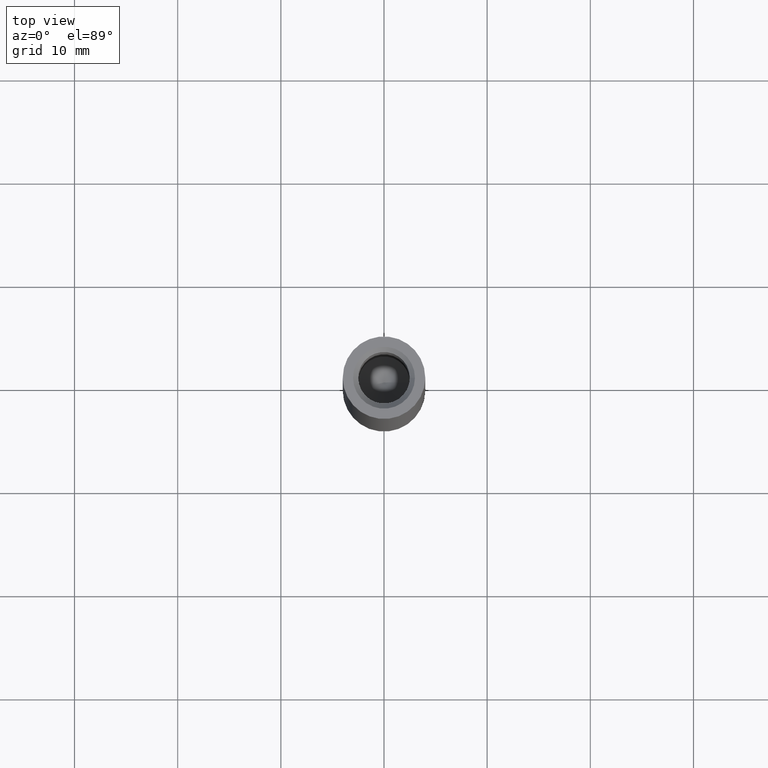
[diagram: clean part render]
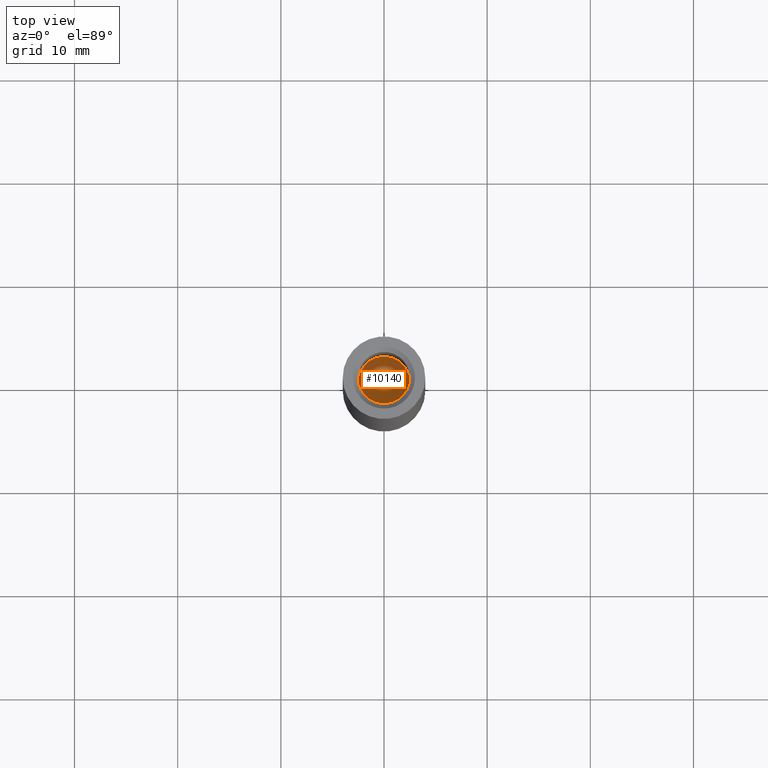
[diagram: same view with one face highlighted and labeled with its STEP entity id]
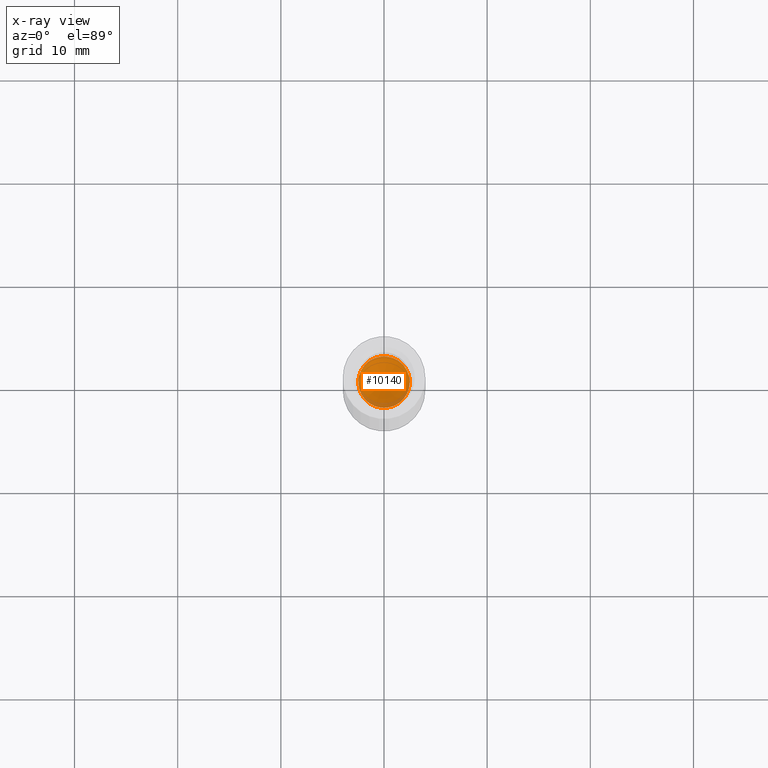
[diagram: x-ray of the same camera — body ghosted, the highlighted face saturated]
A machine part, top view. The second image highlights one B-rep face of the part: STEP entity #10140.
The next image is the same camera in x-ray: the body ghosted, the highlighted face saturated — about 11% of this face is hidden behind the body in this view.
In plain terms, the highlighted conical surface has half-angle 59 deg.
Its self-contained STEP definition (entity closure, byte-faithful):
#554 = DIRECTION ( 'NONE',  ( 1.000000000000000000, 0.000000000000000000, 0.000000000000000000 ) ) ;
#1102 = EDGE_LOOP ( 'NONE', ( #6890 ) ) ;
#2455 = CARTESIAN_POINT ( 'NONE',  ( 0.000000000000000000, 0.000000000000000000, 10.00000000000000178 ) ) ;
#2491 = EDGE_CURVE ( 'NONE', #8297, #8297, #13115, .T. ) ;
#2598 = AXIS2_PLACEMENT_3D ( 'NONE', #2455, #6819, #554 ) ;
#5256 = DIRECTION ( 'NONE',  ( 1.000000000000000000, 0.000000000000000000, 0.000000000000000000 ) ) ;
#6819 = DIRECTION ( 'NONE',  ( -0.000000000000000000, -0.000000000000000000, 1.000000000000000000 ) ) ;
#6890 = ORIENTED_EDGE ( 'NONE', *, *, #2491, .T. ) ;
#8297 = VERTEX_POINT ( 'NONE', #12613 ) ;
#9354 = CONICAL_SURFACE ( 'NONE', #2598, 2.499999999999993783, 1.029744258676651425 ) ;
#9697 = FACE_OUTER_BOUND ( 'NONE', #1102, .T. ) ;
#10140 = ADVANCED_FACE ( 'NONE', ( #9697 ), #9354, .F. ) ;
#10686 = DIRECTION ( 'NONE',  ( -0.000000000000000000, -0.000000000000000000, 1.000000000000000000 ) ) ;
#12613 = CARTESIAN_POINT ( 'NONE',  ( 2.499999999999993783, 0.000000000000000000, 10.00000000000000178 ) ) ;
#13115 = CIRCLE ( 'NONE', #14105, 2.499999999999993783 ) ;
#13986 = CARTESIAN_POINT ( 'NONE',  ( 0.000000000000000000, 0.000000000000000000, 10.00000000000000178 ) ) ;
#14105 = AXIS2_PLACEMENT_3D ( 'NONE', #13986, #10686, #5256 ) ;